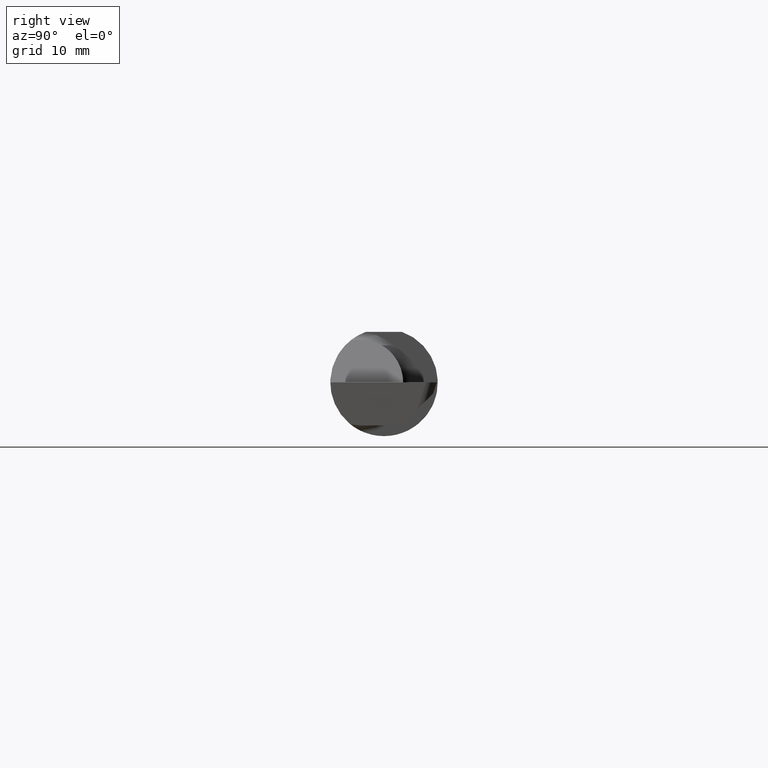
[diagram: clean part render]
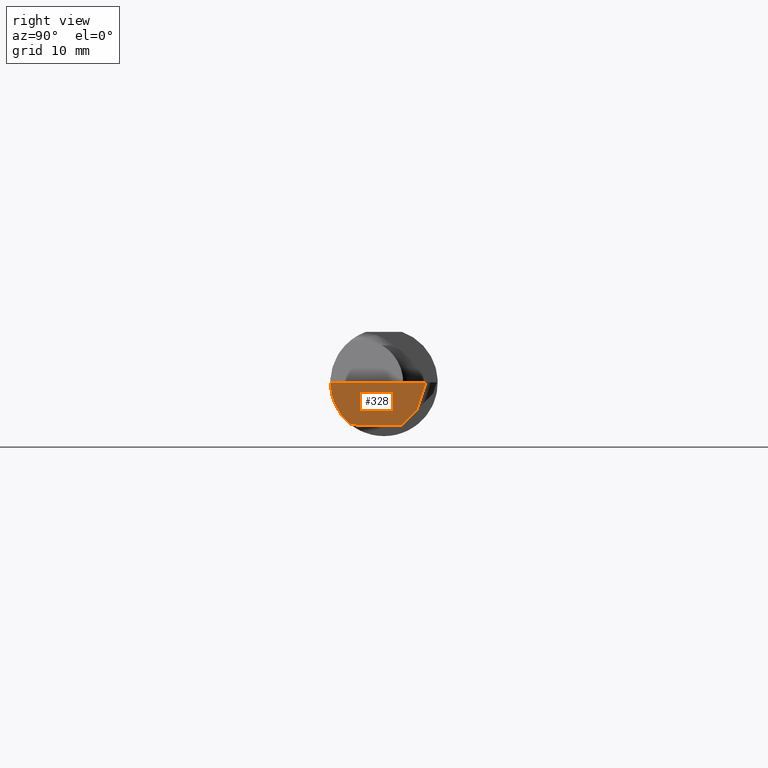
[diagram: same view with one face highlighted and labeled with its STEP entity id]
A machine part, right view. The second image highlights one B-rep face of the part: STEP entity #328.
In plain terms, the highlighted planar face has unit normal (-0.9992, 0.0349, 0.0175).
Its self-contained STEP definition (entity closure, byte-faithful):
#30 = CARTESIAN_POINT ( 'NONE',  ( 2.489267684857003893, -0.08335000000000006293, -0.1500000000000000500 ) ) ;
#39 = ORIENTED_EDGE ( 'NONE', *, *, #283, .T. ) ;
#58 = CARTESIAN_POINT ( 'NONE',  ( 2.496724085642930024, 0.1068785413084647751, -0.1034245102346855322 ) ) ;
#116 = CARTESIAN_POINT ( 'NONE',  ( 2.487246082891137355, -0.1873500000000000165, -0.05781030015605123640 ) ) ;
#163 = VERTEX_POINT ( 'NONE', #306 ) ;
#164 = CARTESIAN_POINT ( 'NONE',  ( 2.488151344270815191, -0.1172600179964006090, -0.1461167706989303927 ) ) ;
#185 =( BOUNDED_CURVE ( )  B_SPLINE_CURVE ( 3, ( #512, #631, #674, #30 ),
 .UNSPECIFIED., .F., .F. ) 
 B_SPLINE_CURVE_WITH_KNOTS ( ( 4, 4 ),
 ( 0.8789888184544304428, 1.107026853503873642 ),
 .UNSPECIFIED. ) 
 CURVE ( )  GEOMETRIC_REPRESENTATION_ITEM ( )  RATIONAL_B_SPLINE_CURVE ( ( 1.000000000000000000, 0.9956712472009929815, 0.9956712472009929815, 1.000000000000000000 ) ) 
 REPRESENTATION_ITEM ( '' )  );
#190 = EDGE_CURVE ( 'NONE', #239, #226, #553, .T. ) ;
#198 = ORIENTED_EDGE ( 'NONE', *, *, #307, .T. ) ;
#226 = VERTEX_POINT ( 'NONE', #231 ) ;
#231 = CARTESIAN_POINT ( 'NONE',  ( 2.494284159956727809, 0.06030305154315079158, -0.1500000000000000500 ) ) ;
#238 = FACE_OUTER_BOUND ( 'NONE', #386, .T. ) ;
#239 = VERTEX_POINT ( 'NONE', #327 ) ;
#256 = VECTOR ( 'NONE', #333, 39.37007874015748143 ) ;
#274 = CARTESIAN_POINT ( 'NONE',  ( 2.487208827712860337, -0.1623470442677540926, -0.1099340280425339100 ) ) ;
#283 = EDGE_CURVE ( 'NONE', #163, #604, #185, .T. ) ;
#295 = CARTESIAN_POINT ( 'NONE',  ( 2.499978631868781331, 0.1483485405823076198, 0.000000000000000000 ) ) ;
#298 = VERTEX_POINT ( 'NONE', #577 ) ;
#306 = CARTESIAN_POINT ( 'NONE',  ( 2.488151344270815191, -0.1172600179964006090, -0.1461167706989303927 ) ) ;
#307 = EDGE_CURVE ( 'NONE', #239, #298, #358, .T. ) ;
#327 = CARTESIAN_POINT ( 'NONE',  ( 2.497216288900020675, 0.1162741585162865993, -0.09402889302686361084 ) ) ;
#328 = ADVANCED_FACE ( 'NONE', ( #238 ), #581, .F. ) ;
#333 = DIRECTION ( 'NONE',  ( -0.03701744261649894674, -0.7066221440565398915, -0.7066221440565479961 ) ) ;
#355 =( BOUNDED_CURVE ( )  B_SPLINE_CURVE ( 3, ( #164, #274, #116, #706 ),
 .UNSPECIFIED., .F., .T. ) 
 B_SPLINE_CURVE_WITH_KNOTS ( ( 4, 4 ),
 ( 5.852427379562161747, 6.746954780470609592 ),
 .UNSPECIFIED. ) 
 CURVE ( )  GEOMETRIC_REPRESENTATION_ITEM ( )  RATIONAL_B_SPLINE_CURVE ( ( 1.000000000000000000, 0.9344226172588802060, 0.9344226172588802060, 1.000000000000000000 ) ) 
 REPRESENTATION_ITEM ( '' )  );
#358 = LINE ( 'NONE', #516, #377 ) ;
#377 = VECTOR ( 'NONE', #472, 39.37007874015748854 ) ;
#386 = EDGE_LOOP ( 'NONE', ( #657, #198, #389, #421, #39, #632 ) ) ;
#389 = ORIENTED_EDGE ( 'NONE', *, *, #471, .T. ) ;
#390 = CARTESIAN_POINT ( 'NONE',  ( 2.489267684857003893, -0.08335000000000006293, -0.1500000000000000500 ) ) ;
#412 = DIRECTION ( 'NONE',  ( -0.03489949670249532787, -0.9993908270190959842, 0.000000000000000000 ) ) ;
#421 = ORIENTED_EDGE ( 'NONE', *, *, #646, .F. ) ;
#426 = VECTOR ( 'NONE', #694, 39.37007874015748143 ) ;
#431 = LINE ( 'NONE', #530, #426 ) ;
#439 = DIRECTION ( 'NONE',  ( -0.03489949670249532787, -0.9993908270190959842, 0.000000000000000000 ) ) ;
#442 = LINE ( 'NONE', #500, #574 ) ;
#470 = AXIS2_PLACEMENT_3D ( 'NONE', #295, #565, #412 ) ;
#471 = EDGE_CURVE ( 'NONE', #298, #567, #431, .T. ) ;
#472 = DIRECTION ( 'NONE',  ( 0.02739170151060053154, 0.3089010440752012476, 0.9506996579664918068 ) ) ;
#474 = CARTESIAN_POINT ( 'NONE',  ( 2.488255780514392335, -0.1873499999999999888, 0.000000000000000000 ) ) ;
#500 = CARTESIAN_POINT ( 'NONE',  ( 2.489564769237789577, -0.07484261642542201776, -0.1500000000000000500 ) ) ;
#512 = CARTESIAN_POINT ( 'NONE',  ( 2.488151344270815191, -0.1172600179964006090, -0.1461167706989303927 ) ) ;
#516 = CARTESIAN_POINT ( 'NONE',  ( 2.499938386127352086, 0.1469717285548436947, 0.0004485129120875658250 ) ) ;
#530 = CARTESIAN_POINT ( 'NONE',  ( 2.499978631868781331, 0.1483485405823076198, 0.000000000000000000 ) ) ;
#553 = LINE ( 'NONE', #58, #256 ) ;
#565 = DIRECTION ( 'NONE',  ( -0.9992386149554828290, 0.03489418134010802836, 0.01745240643728358798 ) ) ;
#567 = VERTEX_POINT ( 'NONE', #474 ) ;
#574 = VECTOR ( 'NONE', #439, 39.37007874015748854 ) ;
#577 = CARTESIAN_POINT ( 'NONE',  ( 2.499925463505881851, 0.1468259978756916440, 0.000000000000000000 ) ) ;
#581 = PLANE ( 'NONE',  #470 ) ;
#604 = VERTEX_POINT ( 'NONE', #390 ) ;
#615 = EDGE_CURVE ( 'NONE', #226, #604, #442, .T. ) ;
#631 = CARTESIAN_POINT ( 'NONE',  ( 2.488494925208532216, -0.1061291577212408327, -0.1486999626928446339 ) ) ;
#632 = ORIENTED_EDGE ( 'NONE', *, *, #615, .F. ) ;
#646 = EDGE_CURVE ( 'NONE', #163, #567, #355, .T. ) ;
#657 = ORIENTED_EDGE ( 'NONE', *, *, #190, .F. ) ;
#674 = CARTESIAN_POINT ( 'NONE',  ( 2.488868656527756240, -0.09477667630339416116, -0.1500000000000000222 ) ) ;
#694 = DIRECTION ( 'NONE',  ( -0.03489949670249533481, -0.9993908270190959842, 0.000000000000000000 ) ) ;
#706 = CARTESIAN_POINT ( 'NONE',  ( 2.488255780514392335, -0.1873499999999999888, 0.000000000000000000 ) ) ;